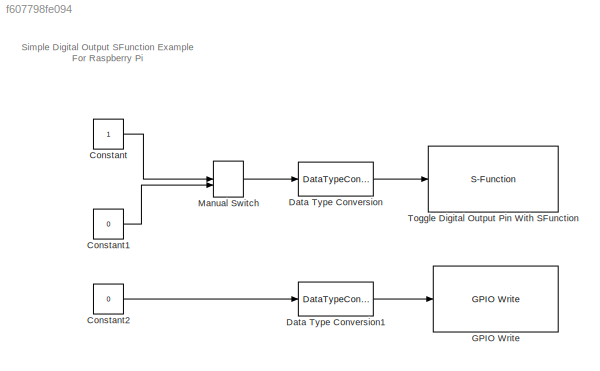
MODEL slx_f607798fe094
KIND model
CONFIG AbsTol = auto
CONFIG EnableMultiTasking = on
CONFIG FixedStep = auto
CONFIG MaxStep = auto
CONFIG MinStep = auto
CONFIG RelTol = 1e-3
CONFIG SampleTimeConstraint = Unconstrained
CONFIG Solver = ode45
CONFIG SolverName = ode45
CONFIG StartTime = 0.0
CONFIG StopTime = 10.0
BLOCK [Constant] Constant
BLOCK [Constant] Constant1
  Value = 0
BLOCK [Constant] Constant2
  Value = 0
BLOCK [DataTypeConversion] Data Type Conversion
  OutDataTypeStr = boolean
  RndMeth = Floor
  SaturateOnIntegerOverflow = off
BLOCK [DataTypeConversion] Data Type Conversion1
  OutDataTypeStr = boolean
  RndMeth = Floor
  SaturateOnIntegerOverflow = off
BLOCK [Reference] GPIO Write  REF=raspberrypilib/GPIO Write
  Ports = [1]
  SourceBlock = raspberrypilib/GPIO Write
  SourceProductBaseCode = RASPPI
  SourceProductName = Simulink Support Package for Raspberry Pi Hardware
  SourceType = GPIO Write
BLOCK [ManualSwitch] Manual Switch
  CurrentSetting = 0
BLOCK [S-Function] Toggle Digital Output Pin With SFunction
  CopyFcn = set_param(gcbh,'LinkStatus','none')
  EnableBusSupport = off
  FunctionName = sfcn_Digital_Out
  InitFcn = try, set_param(gcb,'FunctionName','sfcn_Digital_Out'), end
  OpenFcn = sfunctionwizard(gcbh)
  Parameters = uint8(0)
  Ports = [1]
  PreSaveFcn = try, set_param(gcb,'FunctionName','sfcn_Digital_Out'), end
  SFcnIsStateOwnerBlock = off
  SFunctionDeploymentMode = off
  SFunctionModules = sfcn_Digital_Out_wrapper
ANNOTATION (root): Simple Digital Output SFunction Example For Raspberry Pi
LINE Constant1:1 -> Manual Switch:2
LINE Constant2:1 -> Data Type Conversion1:1
LINE Constant:1 -> Manual Switch:1
LINE Data Type Conversion1:1 -> GPIO Write:1
LINE Data Type Conversion:1 -> Toggle Digital Output Pin With SFunction:1
LINE Manual Switch:1 -> Data Type Conversion:1
